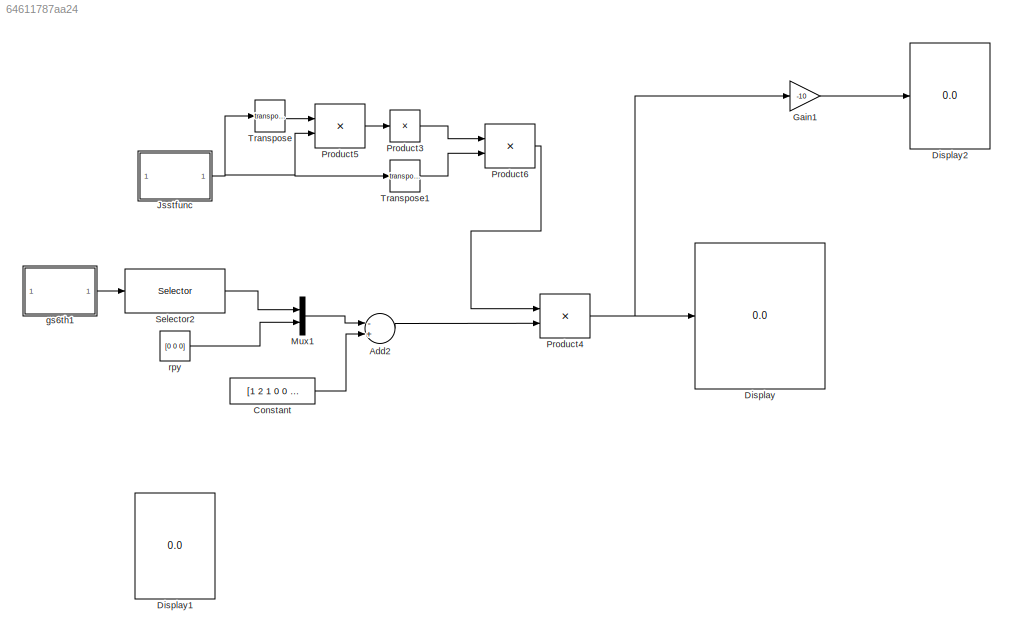
MODEL slx_64611787aa24
KIND model
CONFIG AbsTol = auto
CONFIG EnableMultiTasking = off
CONFIG FixedStep = auto
CONFIG MaxStep = auto
CONFIG MinStep = auto
CONFIG RelTol = 1e-3
CONFIG SampleTimeConstraint = Unconstrained
CONFIG Solver = VariableStepAuto
CONFIG SolverName = VariableStepAuto
CONFIG StartTime = 0.0
CONFIG StopTime = 10.0
BLOCK [Sum] Add2
  InputSameDT = off
  Inputs = -+
  OutDataTypeStr = Inherit: Inherit via internal rule
  Ports = [2, 1]
  SaturateOnIntegerOverflow = off
BLOCK [Constant] Constant
  Value = [1 2 1 0 0 0]
BLOCK [Display] Display
  Decimation = 1
  Ports = [1]
BLOCK [Display] Display1
  Decimation = 1
  Ports = [1]
BLOCK [Display] Display2
  Decimation = 1
  Ports = [1]
BLOCK [Gain] Gain1
  Gain = -10
  OutDataTypeStr = Inherit: Inherit via internal rule
  ParamDataTypeStr = Inherit: Inherit via internal rule
  SaturateOnIntegerOverflow = off
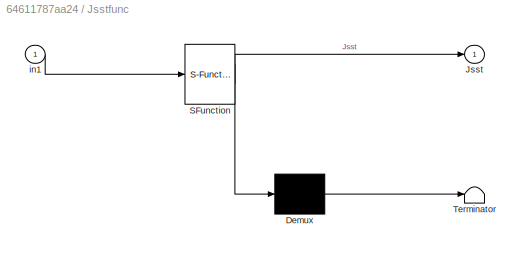
BLOCK [SubSystem] Jsstfunc
  ErrorFcn = Stateflow.Translate.translate
  PermitHierarchicalResolution = ExplicitOnly
  Ports = [1, 1]
  RequestExecContextInheritance = off
  SFBlockType = MATLAB Function
  TreatAsAtomicUnit = on
BLOCK [Demux] Jsstfunc/ Demux 
  Outputs = 1
  Ports = [1, 1]
BLOCK [S-Function] Jsstfunc/ SFunction 
  EnableBusSupport = on
  FunctionName = sf_sfun
  PortCounts = [1 2]
  Ports = [1, 2]
  SFcnIsStateOwnerBlock = off
  SFunctionDeploymentMode = off
  Tag = Stateflow S-Function jacobian_test 10
BLOCK [Terminator] Jsstfunc/ Terminator 
BLOCK [Outport] Jsstfunc/Jsst
  IconDisplay = Port number
BLOCK [Inport] Jsstfunc/in1
  IconDisplay = Port number
BLOCK [Mux] Mux1
  DisplayOption = bar
  Inputs = 2
  Ports = [2, 1]
BLOCK [Product] Product3
  InputSameDT = off
  Inputs = /
  Multiplication = Matrix(*)
  OutDataTypeStr = Inherit: Inherit via internal rule
  Ports = [1, 1]
  RndMeth = Floor
  SaturateOnIntegerOverflow = off
BLOCK [Product] Product4
  InputSameDT = off
  Inputs = **
  Multiplication = Matrix(*)
  OutDataTypeStr = Inherit: Inherit via internal rule
  Ports = [2, 1]
  RndMeth = Floor
  SaturateOnIntegerOverflow = off
BLOCK [Product] Product5
  InputSameDT = off
  Inputs = **
  Multiplication = Matrix(*)
  OutDataTypeStr = Inherit: Inherit via internal rule
  Ports = [2, 1]
  RndMeth = Floor
  SaturateOnIntegerOverflow = off
BLOCK [Product] Product6
  InputSameDT = off
  Inputs = **
  Multiplication = Matrix(*)
  OutDataTypeStr = Inherit: Inherit via internal rule
  Ports = [2, 1]
  RndMeth = Floor
  SaturateOnIntegerOverflow = off
BLOCK [Selector] Selector2
  IndexOptions = Index vector (dialog),Index vector (dialog)
  Indices = [1 2 3],4
  InputPortWidth = 3
  NumberOfDimensions = 2
  OutputSizes = 1,1
  Ports = [1, 1]
BLOCK [Math] Transpose
  Operator = transpose
  Ports = [1, 1]
BLOCK [Math] Transpose1
  Operator = transpose
  Ports = [1, 1]
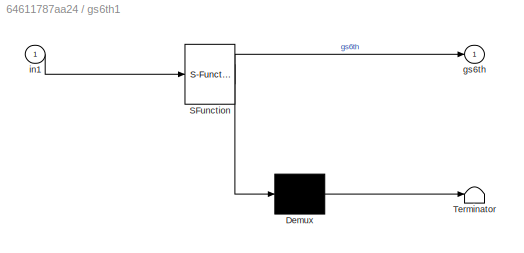
BLOCK [SubSystem] gs6th1
  ErrorFcn = Stateflow.Translate.translate
  PermitHierarchicalResolution = ExplicitOnly
  Ports = [1, 1]
  RequestExecContextInheritance = off
  SFBlockType = MATLAB Function
  TreatAsAtomicUnit = on
BLOCK [Demux] gs6th1/ Demux 
  Outputs = 1
  Ports = [1, 1]
BLOCK [S-Function] gs6th1/ SFunction 
  EnableBusSupport = on
  FunctionName = sf_sfun
  PortCounts = [1 2]
  Ports = [1, 2]
  SFcnIsStateOwnerBlock = off
  SFunctionDeploymentMode = off
  Tag = Stateflow S-Function jacobian_test 11
BLOCK [Terminator] gs6th1/ Terminator 
BLOCK [Outport] gs6th1/gs6th
  IconDisplay = Port number
BLOCK [Inport] gs6th1/in1
  IconDisplay = Port number
BLOCK [Constant] rpy 
  Value = [0 0 0]
LINE Add2:1 -> Product4:2
LINE Constant:1 -> Add2:2
LINE Gain1:1 -> Display2:1
NET Jsstfunc:1 -> Product5:2, Transpose1:1, Transpose:1
LINE Mux1:1 -> Add2:1
LINE Product3:1 -> Product6:1
NET Product4:1 -> Display:1, Gain1:1
LINE Product5:1 -> Product3:1
LINE Product6:1 -> Product4:1
LINE Selector2:1 -> Mux1:1
LINE Transpose1:1 -> Product6:2
LINE Transpose:1 -> Product5:1
LINE gs6th1:1 -> Selector2:1
LINE rpy :1 -> Mux1:2
note: NET lines group one-source signal fan-out (src -> all destinations, sorted); 1:1 wires keep LINE
CHART Jsstfunc states=1 transitions=1
  STATE_LABEL 'eML_blk_kernel()'
  STATE_LABEL 'SCRIPT:\nfunction Jsst = Jsstfunc(in1)\n%#codegen\n\n%    This function was generated by the Symbolic Math Toolbox version 8.1.\n%    10-May-2018 02:30:39\n\nth1 = in1(1,:);\nth2 = in1(2,:);\nth3 = in1(3,:);\nth4 = in1(4,:);\nth5 = in1(5,:);\nt2 = sin(th4);\nt3 = th3+3.0./1.0e1;\nt4 = cos(th4);\nt5 = th3.*1.0e1;\nt6 = sin(th5);\nt7 = t5-t6.*5.0+3.0;\nt8 = t2.*(1.0./2.0e1);\nt9 = t4.*th2;\nJsst = reshape([1.0,0.0,0.0,...<+236ch>'
CHART gs6th1 states=1 transitions=1
  STATE_LABEL 'eML_blk_kernel()'
  STATE_LABEL 'SCRIPT:\nfunction gs6th = gs6th(in1)\n%#codegen\n\n%    This function was generated by the Symbolic Math Toolbox version 8.1.\n%    10-May-2018 02:30:37\n\nth1 = in1(1,:);\nth2 = in1(2,:);\nth3 = in1(3,:);\nth4 = in1(4,:);\nth5 = in1(5,:);\nth6 = in1(6,:);\nt2 = th5+th6;\nt3 = sin(th4);\nt4 = cos(th4);\nt5 = cos(th5);\nt6 = cos(t2);\nt7 = sin(t2);\nt8 = sin(th5);\nt9 = sin(th6);\nt10 = cos(th6);\ngs6th = reshape([t4,t3...<+298ch>'
